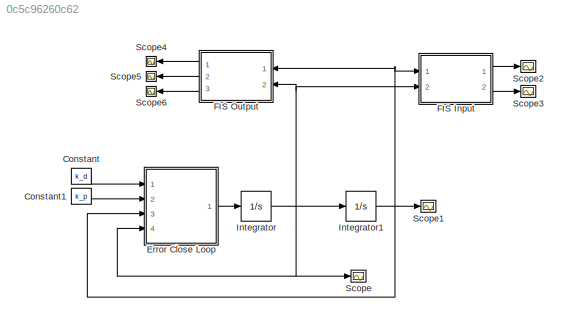
MODEL slx_0c5c96260c62
KIND model
CONFIG AbsTol = auto
CONFIG EnableMultiTasking = off
CONFIG FixedStep = ts
CONFIG MaxStep = auto
CONFIG MinStep = auto
CONFIG RelTol = 1e-3
CONFIG SampleTimeConstraint = Unconstrained
CONFIG Solver = FixedStepAuto
CONFIG SolverName = FixedStepAuto
CONFIG StartTime = 0.0
CONFIG StopTime = tf
BLOCK [Constant] Constant
  Value = k_d
BLOCK [Constant] Constant1
  Value = k_p
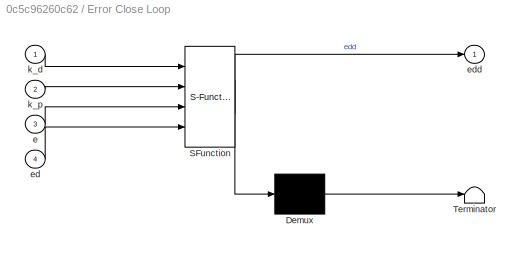
BLOCK [SubSystem] Error Close Loop
  ErrorFcn = Stateflow.Translate.translate
  PermitHierarchicalResolution = ExplicitOnly
  Ports = [4, 1]
  RequestExecContextInheritance = off
  SFBlockType = MATLAB Function
  TreatAsAtomicUnit = on
BLOCK [Demux] Error Close Loop/ Demux 
  Outputs = 1
  Ports = [1, 1]
BLOCK [S-Function] Error Close Loop/ SFunction 
  EnableBusSupport = on
  FunctionName = sf_sfun
  PortCounts = [4 2]
  Ports = [4, 2]
  SFcnIsStateOwnerBlock = off
  SFunctionDeploymentMode = off
  Tag = Stateflow S-Function test 2
BLOCK [Terminator] Error Close Loop/ Terminator 
BLOCK [Inport] Error Close Loop/e
  IconDisplay = Port number
  Port = 3
BLOCK [Inport] Error Close Loop/ed
  IconDisplay = Port number
  Port = 4
BLOCK [Outport] Error Close Loop/edd
  IconDisplay = Port number
BLOCK [Inport] Error Close Loop/k_d
  IconDisplay = Port number
BLOCK [Inport] Error Close Loop/k_p
  IconDisplay = Port number
  Port = 2
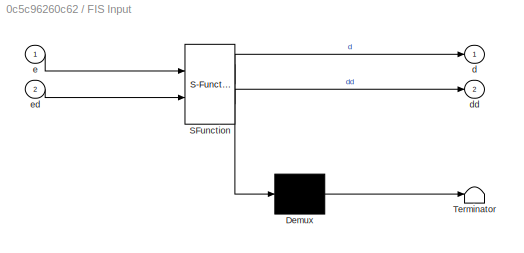
BLOCK [SubSystem] FIS Input
  ErrorFcn = Stateflow.Translate.translate
  PermitHierarchicalResolution = ExplicitOnly
  Ports = [2, 2]
  RequestExecContextInheritance = off
  SFBlockType = MATLAB Function
  TreatAsAtomicUnit = on
BLOCK [Demux] FIS Input/ Demux 
  Outputs = 1
  Ports = [1, 1]
BLOCK [S-Function] FIS Input/ SFunction 
  EnableBusSupport = on
  FunctionName = sf_sfun
  PortCounts = [2 3]
  Ports = [2, 3]
  SFcnIsStateOwnerBlock = off
  SFunctionDeploymentMode = off
  Tag = Stateflow S-Function test 1
BLOCK [Terminator] FIS Input/ Terminator 
BLOCK [Outport] FIS Input/d
  IconDisplay = Port number
BLOCK [Outport] FIS Input/dd
  IconDisplay = Port number
  Port = 2
BLOCK [Inport] FIS Input/e
  IconDisplay = Port number
BLOCK [Inport] FIS Input/ed
  IconDisplay = Port number
  Port = 2
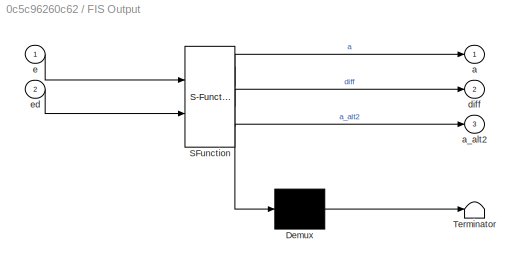
BLOCK [SubSystem] FIS Output
  ErrorFcn = Stateflow.Translate.translate
  PermitHierarchicalResolution = ExplicitOnly
  Ports = [2, 3]
  RequestExecContextInheritance = off
  SFBlockType = MATLAB Function
  TreatAsAtomicUnit = on
BLOCK [Demux] FIS Output/ Demux 
  Outputs = 1
  Ports = [1, 1]
BLOCK [S-Function] FIS Output/ SFunction 
  EnableBusSupport = on
  FunctionName = sf_sfun
  PortCounts = [2 4]
  Ports = [2, 4]
  SFcnIsStateOwnerBlock = off
  SFunctionDeploymentMode = off
  Tag = Stateflow S-Function test 3
BLOCK [Terminator] FIS Output/ Terminator 
BLOCK [Outport] FIS Output/a
  IconDisplay = Port number
BLOCK [Outport] FIS Output/a_alt2
  IconDisplay = Port number
  Port = 3
BLOCK [Outport] FIS Output/diff
  IconDisplay = Port number
  Port = 2
BLOCK [Inport] FIS Output/e
  IconDisplay = Port number
BLOCK [Inport] FIS Output/ed
  IconDisplay = Port number
  Port = 2
BLOCK [Integrator] Integrator
  Ports = [1, 1]
BLOCK [Integrator] Integrator1
  InitialCondition = x0
  Ports = [1, 1]
BLOCK [Scope] Scope
  Floating = off
  NumInputPorts = 1
  Ports = [1]
  ScopeSpecificationString = Simulink.scopes.TimeScopeBlockCfg('CurrentConfiguration', extmgr.ConfigurationSet(extmgr.Configuration('Core','General UI',true),extmgr.Configuration('Core','Source UI',true),extmgr.Configuration('Sources','WiredSimulink',true,'DataLogging',true,'DataLoggingVariableName','ed','DataLoggingSaveFormat','Array'),extmgr.Configuration('Visuals','Time Domain',true,'SerializedDisplays',{struct('MinYLimRea...<+1460ch>
BLOCK [Scope] Scope1
  Floating = off
  NumInputPorts = 1
  Ports = [1]
  ScopeSpecificationString = Simulink.scopes.TimeScopeBlockCfg('CurrentConfiguration', extmgr.ConfigurationSet(extmgr.Configuration('Core','General UI',true),extmgr.Configuration('Core','Source UI',true),extmgr.Configuration('Sources','WiredSimulink',true,'DataLoggingVariableName','e','DataLogging',true,'DataLoggingSaveFormat','Array'),extmgr.Configuration('Visuals','Time Domain',true,'SerializedDisplays',{struct('MinYLimReal...<+1437ch>
BLOCK [Scope] Scope2
  Floating = off
  NumInputPorts = 1
  Ports = [1]
  ScopeSpecificationString = Simulink.scopes.TimeScopeBlockCfg('CurrentConfiguration', extmgr.ConfigurationSet(extmgr.Configuration('Core','General UI',true),extmgr.Configuration('Core','Source UI',true),extmgr.Configuration('Sources','WiredSimulink',true,'DataLoggingVariableName','d','DataLogging',true,'DataLoggingSaveFormat','Array'),extmgr.Configuration('Visuals','Time Domain',true,'SerializedDisplays',{struct('MinYLimReal...<+1437ch>
BLOCK [Scope] Scope3
  Floating = off
  NumInputPorts = 1
  Ports = [1]
  ScopeSpecificationString = Simulink.scopes.TimeScopeBlockCfg('CurrentConfiguration', extmgr.ConfigurationSet(extmgr.Configuration('Core','General UI',true),extmgr.Configuration('Core','Source UI',true),extmgr.Configuration('Sources','WiredSimulink',true,'DataLoggingVariableName','dd','DataLogging',true,'DataLoggingSaveFormat','Array'),extmgr.Configuration('Visuals','Time Domain',true,'SerializedDisplays',{struct('MinYLimRea...<+1472ch>
BLOCK [Scope] Scope4
  Floating = off
  NumInputPorts = 1
  Ports = [1]
  ScopeSpecificationString = Simulink.scopes.TimeScopeBlockCfg('CurrentConfiguration', extmgr.ConfigurationSet(extmgr.Configuration('Core','General UI',true),extmgr.Configuration('Core','Source UI',true),extmgr.Configuration('Sources','WiredSimulink',true,'DataLoggingVariableName','a','DataLogging',true,'DataLoggingSaveFormat','Array'),extmgr.Configuration('Visuals','Time Domain',true,'SerializedDisplays',{struct('MinYLimReal...<+1471ch>
BLOCK [Scope] Scope5
  Floating = off
  NumInputPorts = 1
  Ports = [1]
  ScopeSpecificationString = Simulink.scopes.TimeScopeBlockCfg('CurrentConfiguration', extmgr.ConfigurationSet(extmgr.Configuration('Core','General UI',true),extmgr.Configuration('Core','Source UI',true),extmgr.Configuration('Sources','WiredSimulink',true,'DataLoggingVariableName','a1','DataLogging',true,'DataLoggingSaveFormat','Array'),extmgr.Configuration('Visuals','Time Domain',true,'SerializedDisplays',{struct('MinYLimRea...<+1471ch>
BLOCK [Scope] Scope6
  Floating = off
  NumInputPorts = 1
  Ports = [1]
  ScopeSpecificationString = Simulink.scopes.TimeScopeBlockCfg('CurrentConfiguration', extmgr.ConfigurationSet(extmgr.Configuration('Core','General UI',true),extmgr.Configuration('Core','Source UI',true),extmgr.Configuration('Sources','WiredSimulink',true,'DataLoggingVariableName','a2','DataLogging',true,'DataLoggingSaveFormat','Array'),extmgr.Configuration('Visuals','Time Domain',true,'SerializedDisplays',{struct('MinYLimRea...<+1478ch>
LINE Constant1:1 -> Error Close Loop:2
LINE Constant:1 -> Error Close Loop:1
LINE Error Close Loop:1 -> Integrator:1
LINE FIS Input:1 -> Scope2:1
LINE FIS Input:2 -> Scope3:1
LINE FIS Output:1 -> Scope4:1
LINE FIS Output:2 -> Scope5:1
LINE FIS Output:3 -> Scope6:1
NET Integrator1:1 -> Error Close Loop:3, FIS Input:1, FIS Output:1, Scope1:1
NET Integrator:1 -> Error Close Loop:4, FIS Input:2, FIS Output:2, Integrator1:1, Scope:1
note: NET lines group one-source signal fan-out (src -> all destinations, sorted); 1:1 wires keep LINE
CHART FIS Input states=1 transitions=1
  STATE_LABEL 'eML_blk_kernel()'
  STATE_LABEL 'SCRIPT:\nfunction [d,dd] = fcn(e,ed)\nd = norm(e);\ndd = norm(ed)*sign(sign(ed(1))+sign(ed(2))-1);\nend\n'
CHART Error Close Loop states=1 transitions=1
  STATE_LABEL 'eML_blk_kernel()'
  STATE_LABEL 'SCRIPT:\nfunction edd = fcn(k_d,k_p,e,ed)\nedd = - k_d*ed - k_p*e;\nend'
CHART FIS Output states=1 transitions=1
  STATE_LABEL 'eML_blk_kernel()'
  STATE_LABEL 'SCRIPT:\nfunction [a,diff,a_alt2] = fcn(e,ed)\n%% method 1\n a = norm(ed);\n%% method 2\n d = norm(e);\n a1 = ed(1)*d/e(1);\n a2 = ed(1)*d/e(2);\n a_alt2 = norm([a1 a2]);\n diff = a_alt2 - a;\nend\n'
